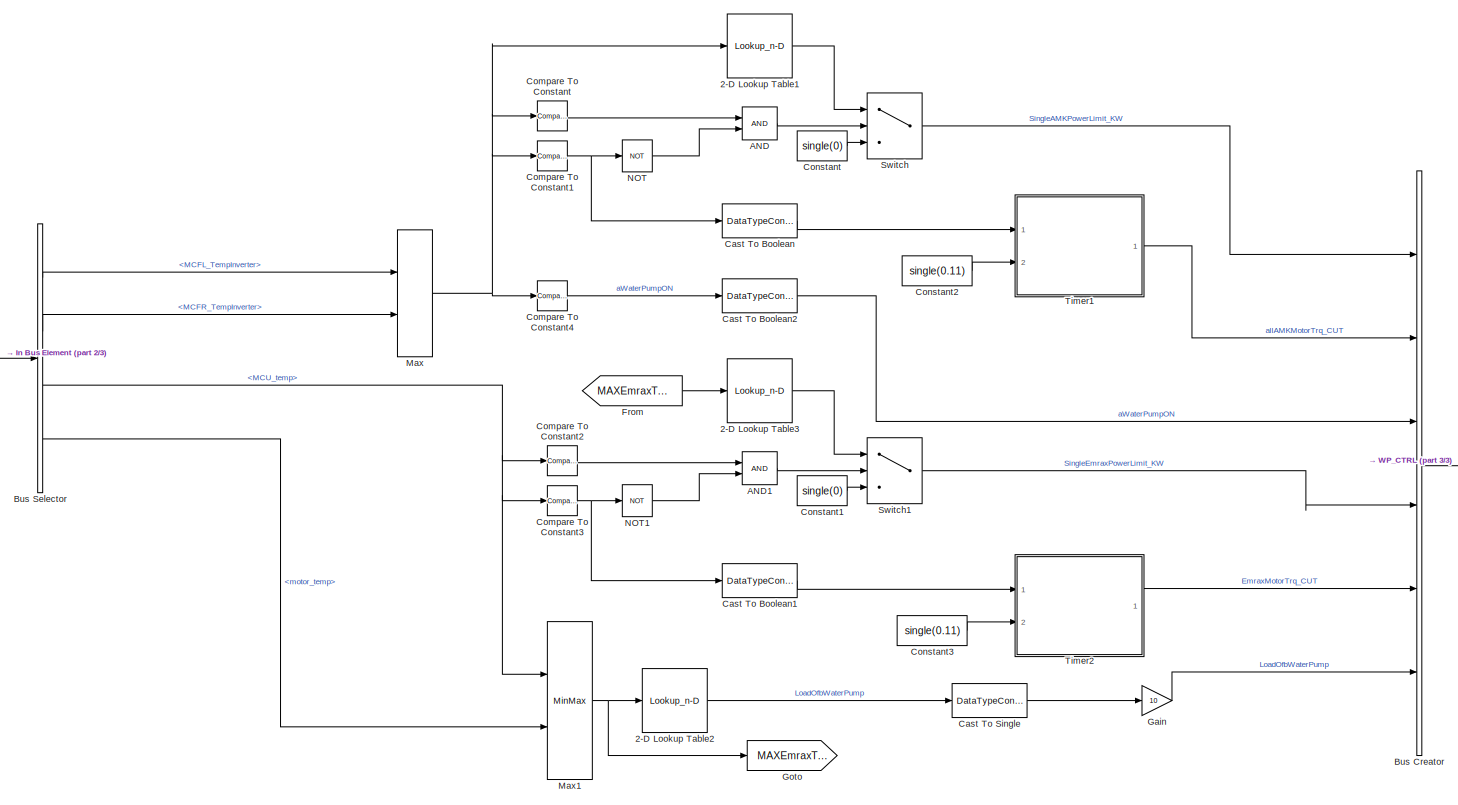
[diagram: root canvas - part 1/3, most of the canvas]
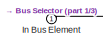
[diagram: root canvas - part 2/3, middle left region]
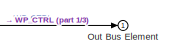
[diagram: root canvas - part 3/3, middle right region]
MODEL slx_282c206c61b3
KIND model
CONFIG AbsTol = auto
CONFIG EnableMultiTasking = off
CONFIG FixedStep = auto
CONFIG MaxStep = auto
CONFIG MinStep = auto
CONFIG RelTol = 1e-3
CONFIG SampleTimeConstraint = Unconstrained
CONFIG Solver = VariableStepAuto
CONFIG SolverName = VariableStepAuto
CONFIG StartTime = 0.0
CONFIG StopTime = 10.0
BLOCK [Lookup_n-D] 2-D Lookup Table1
  BreakpointsForDimension1 = [35,40,41,42,43,44,45,50]
  BreakpointsForDimension2 = [1:3]
  InternalRulePriority = Speed
  NumberOfTableDimensions = 1
  Ports = [1, 1]
  RndMeth = Simplest
  Table = [0,0,0.2,0.4,0.6,0.8,1,1]
BLOCK [Lookup_n-D] 2-D Lookup Table2
  BreakpointsForDimension1 = [0;25;30;35;37;40;50]
  BreakpointsForDimension2 = [1:3]
  InternalRulePriority = Speed
  NumberOfTableDimensions = 1
  Ports = [1, 1]
  RndMeth = Simplest
  Table = [0;0;20;40;70;100;100]
BLOCK [Lookup_n-D] 2-D Lookup Table3
  BreakpointsForDimension1 = [35,40,41,42,43,44,45,50]
  BreakpointsForDimension2 = [1:3]
  InternalRulePriority = Speed
  NumberOfTableDimensions = 1
  Ports = [1, 1]
  RndMeth = Simplest
  Table = [0,0,0.2,0.4,0.6,0.8,1,1]
BLOCK [Logic] AND
  AllPortsSameDT = off
  OutDataTypeStr = boolean
  Ports = [2, 1]
BLOCK [Logic] AND1
  AllPortsSameDT = off
  OutDataTypeStr = boolean
  Ports = [2, 1]
BLOCK [BusCreator] Bus Creator
  DisplayOption = bar
  InheritFromInputs = on
  Inputs = 6
  Ports = [6, 1]
BLOCK [BusSelector] Bus Selector
  OutputAsBus = off
  OutputSignals = VCUReceive.signal1.BUS.AMKMCUtoVCU_BUS.FLAMKMCUtoVCU3.MCFL_TempInverter,VCUReceive.signal1.BUS.AMKMCUtoVCU_BUS.FRAMKMCUtoVCU3.MCFR_TempInverter,VCUReceive.signal1.BUS.EMRAXMCU_Receive.MCU_pwr.MCU_temp,VCUReceive.signal1.BUS.EMRAXMCU_Receive.MCU_pwr.motor_temp
  Ports = [1, 4]
BLOCK [DataTypeConversion] Cast To Boolean
  OutDataTypeStr = boolean
  RndMeth = Floor
  SaturateOnIntegerOverflow = off
BLOCK [DataTypeConversion] Cast To Boolean1
  OutDataTypeStr = boolean
  RndMeth = Floor
  SaturateOnIntegerOverflow = off
BLOCK [DataTypeConversion] Cast To Boolean2
  OutDataTypeStr = boolean
  RndMeth = Floor
  SaturateOnIntegerOverflow = off
BLOCK [DataTypeConversion] Cast To Single
  OutDataTypeStr = single
  RndMeth = Floor
  SaturateOnIntegerOverflow = off
BLOCK [Reference] Compare To Constant  REF=simulink/Logic and Bit
Operations/Compare
To Constant
  Ports = [1, 1]
  SourceBlock = simulink/Logic and Bit\nOperations/Compare\nTo Constant
  SourceProductBaseCode = SL
  SourceProductName = Simulink
  SourceType = Compare To Constant
BLOCK [Reference] Compare To Constant1  REF=simulink/Logic and Bit
Operations/Compare
To Constant
  Ports = [1, 1]
  SourceBlock = simulink/Logic and Bit\nOperations/Compare\nTo Constant
  SourceProductBaseCode = SL
  SourceProductName = Simulink
  SourceType = Compare To Constant
BLOCK [Reference] Compare To Constant2  REF=simulink/Logic and Bit
Operations/Compare
To Constant
  Ports = [1, 1]
  SourceBlock = simulink/Logic and Bit\nOperations/Compare\nTo Constant
  SourceProductBaseCode = SL
  SourceProductName = Simulink
  SourceType = Compare To Constant
BLOCK [Reference] Compare To Constant3  REF=simulink/Logic and Bit
Operations/Compare
To Constant
  Ports = [1, 1]
  SourceBlock = simulink/Logic and Bit\nOperations/Compare\nTo Constant
  SourceProductBaseCode = SL
  SourceProductName = Simulink
  SourceType = Compare To Constant
BLOCK [Reference] Compare To Constant4  REF=simulink/Logic and Bit
Operations/Compare
To Constant
  Ports = [1, 1]
  SourceBlock = simulink/Logic and Bit\nOperations/Compare\nTo Constant
  SourceProductBaseCode = SL
  SourceProductName = Simulink
  SourceType = Compare To Constant
BLOCK [Constant] Constant
  Value = single(0)
BLOCK [Constant] Constant1
  Value = single(0)
BLOCK [Constant] Constant2
  Value = single(0.11)
BLOCK [Constant] Constant3
  Value = single(0.11)
BLOCK [From] From
  GotoTag = MAXEmraxTemp
BLOCK [Gain] Gain
  Gain = 10
  OutDataTypeStr = Inherit: Inherit via internal rule
  ParamDataTypeStr = Inherit: Inherit via internal rule
  SaturateOnIntegerOverflow = off
BLOCK [Goto] Goto
  GotoTag = MAXEmraxTemp
BLOCK [Inport] In Bus Element
  IconDisplay = Port number
BLOCK [MinMax] Max
  Function = max
  InputSameDT = off
  Inputs = 2
  Ports = [2, 1]
  SaturateOnIntegerOverflow = off
BLOCK [MinMax] Max1
  Function = max
  InputSameDT = off
  Inputs = 2
  Ports = [2, 1]
  SaturateOnIntegerOverflow = off
BLOCK [Logic] NOT
  AllPortsSameDT = off
  Operator = NOT
  OutDataTypeStr = boolean
  Ports = [1, 1]
BLOCK [Logic] NOT1
  AllPortsSameDT = off
  Operator = NOT
  OutDataTypeStr = boolean
  Ports = [1, 1]
BLOCK [Outport] Out Bus Element
  IconDisplay = Port number
BLOCK [Switch] Switch
  Criteria = u2 ~= 0
  InputSameDT = off
  SaturateOnIntegerOverflow = off
BLOCK [Switch] Switch1
  Criteria = u2 ~= 0
  InputSameDT = off
  SaturateOnIntegerOverflow = off
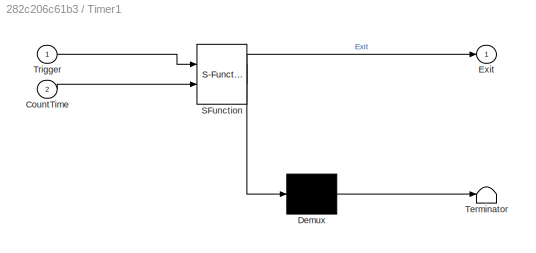
BLOCK [SubSystem] Timer1
  ErrorFcn = Stateflow.Translate.translate
  PermitHierarchicalResolution = ExplicitOnly
  Ports = [2, 1]
  RequestExecContextInheritance = off
  SFBlockType = Chart
  TreatAsAtomicUnit = on
BLOCK [Demux] Timer1/ Demux 
  Outputs = 1
  Ports = [1, 1]
BLOCK [S-Function] Timer1/ SFunction 
  EnableBusSupport = on
  FunctionName = sf_sfun
  Parameters = 0
  PortCounts = [2 2]
  Ports = [2, 2]
  SFcnIsStateOwnerBlock = off
  SFunctionDeploymentMode = off
  Tag = Stateflow S-Function 5
BLOCK [Terminator] Timer1/ Terminator 
BLOCK [Inport] Timer1/CountTime
  IconDisplay = Port number
  Port = 2
BLOCK [Outport] Timer1/Exit
  IconDisplay = Port number
BLOCK [Inport] Timer1/Trigger
  IconDisplay = Port number
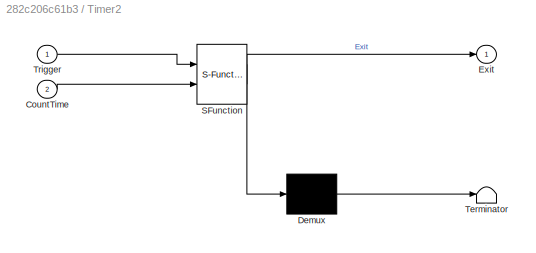
BLOCK [SubSystem] Timer2
  ErrorFcn = Stateflow.Translate.translate
  PermitHierarchicalResolution = ExplicitOnly
  Ports = [2, 1]
  RequestExecContextInheritance = off
  SFBlockType = Chart
  TreatAsAtomicUnit = on
BLOCK [Demux] Timer2/ Demux 
  Outputs = 1
  Ports = [1, 1]
BLOCK [S-Function] Timer2/ SFunction 
  EnableBusSupport = on
  FunctionName = sf_sfun
  Parameters = 0
  PortCounts = [2 2]
  Ports = [2, 2]
  SFcnIsStateOwnerBlock = off
  SFunctionDeploymentMode = off
  Tag = Stateflow S-Function 6
BLOCK [Terminator] Timer2/ Terminator 
BLOCK [Inport] Timer2/CountTime
  IconDisplay = Port number
  Port = 2
BLOCK [Outport] Timer2/Exit
  IconDisplay = Port number
BLOCK [Inport] Timer2/Trigger
  IconDisplay = Port number
LINE 2-D Lookup Table1:1 -> Switch:1
LINE 2-D Lookup Table2:1 -> Cast To Single:1
LINE 2-D Lookup Table3:1 -> Switch1:1
LINE AND1:1 -> Switch1:2
LINE AND:1 -> Switch:2
LINE Bus Creator:1 -> Out Bus Element:1
LINE Bus Selector:1 -> Max:1
LINE Bus Selector:2 -> Max:2
NET Bus Selector:3 -> Compare To Constant2:1, Compare To Constant3:1, Max1:1
LINE Bus Selector:4 -> Max1:2
LINE Cast To Boolean1:1 -> Timer2:1
LINE Cast To Boolean2:1 -> Bus Creator:3
LINE Cast To Boolean:1 -> Timer1:1
LINE Cast To Single:1 -> Gain:1
NET Compare To Constant1:1 -> Cast To Boolean:1, NOT:1
LINE Compare To Constant2:1 -> AND1:1
NET Compare To Constant3:1 -> Cast To Boolean1:1, NOT1:1
LINE Compare To Constant4:1 -> Cast To Boolean2:1
LINE Compare To Constant:1 -> AND:1
LINE Constant1:1 -> Switch1:3
LINE Constant2:1 -> Timer1:2
LINE Constant3:1 -> Timer2:2
LINE Constant:1 -> Switch:3
LINE From:1 -> 2-D Lookup Table3:1
LINE Gain:1 -> Bus Creator:6
LINE In Bus Element:1 -> Bus Selector:1
NET Max1:1 -> 2-D Lookup Table2:1, Goto:1
NET Max:1 -> 2-D Lookup Table1:1, Compare To Constant1:1, Compare To Constant4:1, Compare To Constant:1
LINE NOT1:1 -> AND1:2
LINE NOT:1 -> AND:2
LINE Switch1:1 -> Bus Creator:4
LINE Switch:1 -> Bus Creator:1
LINE Timer1:1 -> Bus Creator:2
LINE Timer2:1 -> Bus Creator:5
note: NET lines group one-source signal fan-out (src -> all destinations, sorted); 1:1 wires keep LINE
CHART Timer1 states=3 transitions=6
  STATE_LABEL 'Trigger\nen:\nx = x + 0.01;\nExit=0;\n'
  STATE_LABEL 'Out\nen:\nExit=1;\nx=0;\n'
  STATE_LABEL 'InterState\nen:\nx=0;'
CHART Timer2 states=3 transitions=6
  STATE_LABEL 'Trigger\nen:\nx = x + 0.01;\nExit=0;\n'
  STATE_LABEL 'Out\nen:\nExit=1;\nx=0;\n'
  STATE_LABEL 'InterState\nen:\nx=0;'
